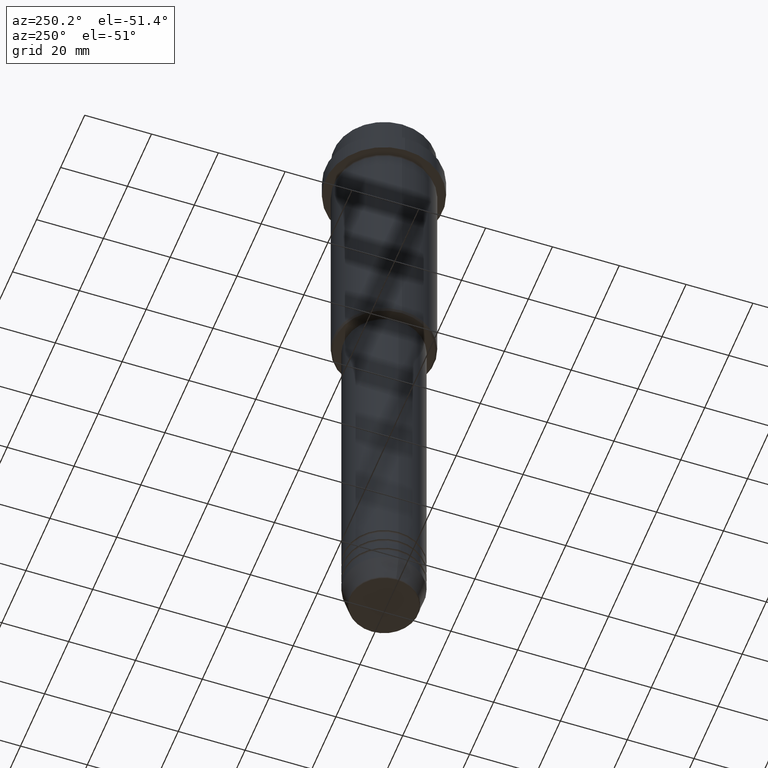
[diagram: clean part render]
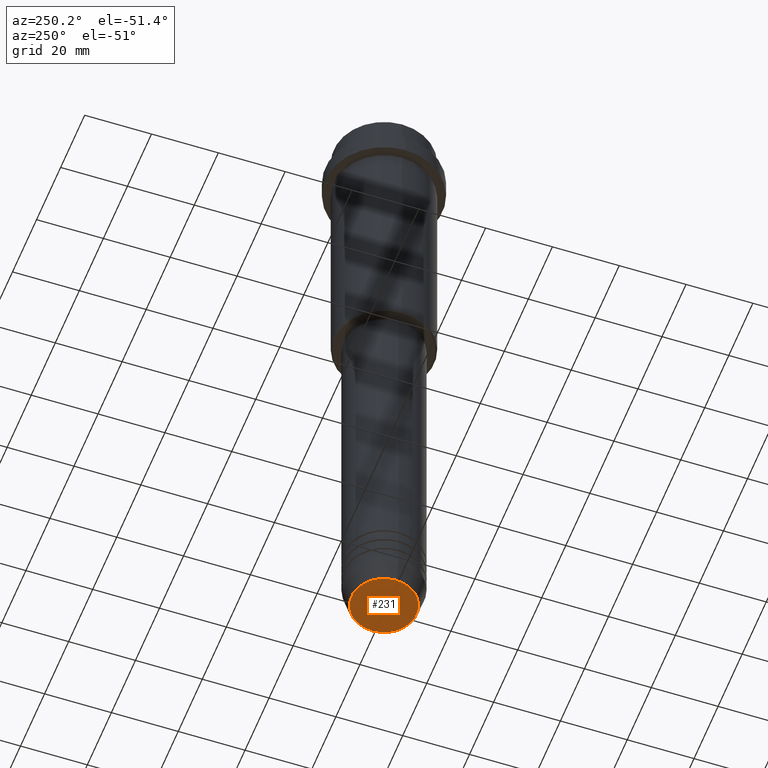
[diagram: same view with one face highlighted and labeled with its STEP entity id]
A machine part, auxiliary view. The second image highlights one B-rep face of the part: STEP entity #231.
In plain terms, the highlighted planar face has unit normal (0, -0, 1).
Its self-contained STEP definition (entity closure, byte-faithful):
#10 = VERTEX_POINT ( 'NONE', #1078 ) ;
#17 = DIRECTION ( 'NONE',  ( 1.000000000000000000, 0.000000000000000000, 0.000000000000000000 ) ) ;
#115 = CARTESIAN_POINT ( 'NONE',  ( 9.740692158992658278, 0.000000000000000000, -200.0000000000000000 ) ) ;
#231 = ADVANCED_FACE ( 'NONE', ( #596 ), #274, .F. ) ;
#274 = PLANE ( 'NONE',  #985 ) ;
#429 = DIRECTION ( 'NONE',  ( 0.000000000000000000, 0.000000000000000000, -1.000000000000000000 ) ) ;
#456 = CARTESIAN_POINT ( 'NONE',  ( 0.000000000000000000, 0.000000000000000000, -200.0000000000000000 ) ) ;
#483 = AXIS2_PLACEMENT_3D ( 'NONE', #456, #569, #17 ) ;
#569 = DIRECTION ( 'NONE',  ( 0.000000000000000000, 0.000000000000000000, -1.000000000000000000 ) ) ;
#581 = ORIENTED_EDGE ( 'NONE', *, *, #871, .T. ) ;
#596 = FACE_OUTER_BOUND ( 'NONE', #1010, .T. ) ;
#653 = CIRCLE ( 'NONE', #483, 9.740692158992658278 ) ;
#747 = CARTESIAN_POINT ( 'NONE',  ( 0.000000000000000000, 0.000000000000000000, -200.0000000000000000 ) ) ;
#803 = CARTESIAN_POINT ( 'NONE',  ( 0.000000000000000000, 0.000000000000000000, -200.0000000000000000 ) ) ;
#849 = CIRCLE ( 'NONE', #1112, 9.740692158992658278 ) ;
#861 = DIRECTION ( 'NONE',  ( 1.000000000000000000, 0.000000000000000000, 0.000000000000000000 ) ) ;
#871 = EDGE_CURVE ( 'NONE', #10, #901, #653, .T. ) ;
#881 = ORIENTED_EDGE ( 'NONE', *, *, #893, .T. ) ;
#893 = EDGE_CURVE ( 'NONE', #901, #10, #849, .T. ) ;
#901 = VERTEX_POINT ( 'NONE', #115 ) ;
#985 = AXIS2_PLACEMENT_3D ( 'NONE', #803, #1266, #1250 ) ;
#1010 = EDGE_LOOP ( 'NONE', ( #881, #581 ) ) ;
#1078 = CARTESIAN_POINT ( 'NONE',  ( -9.740692158992658278, 1.222463696683474999E-15, -200.0000000000000000 ) ) ;
#1112 = AXIS2_PLACEMENT_3D ( 'NONE', #747, #429, #861 ) ;
#1250 = DIRECTION ( 'NONE',  ( 1.000000000000000000, 0.000000000000000000, 0.000000000000000000 ) ) ;
#1266 = DIRECTION ( 'NONE',  ( 0.000000000000000000, -0.000000000000000000, 1.000000000000000000 ) ) ;